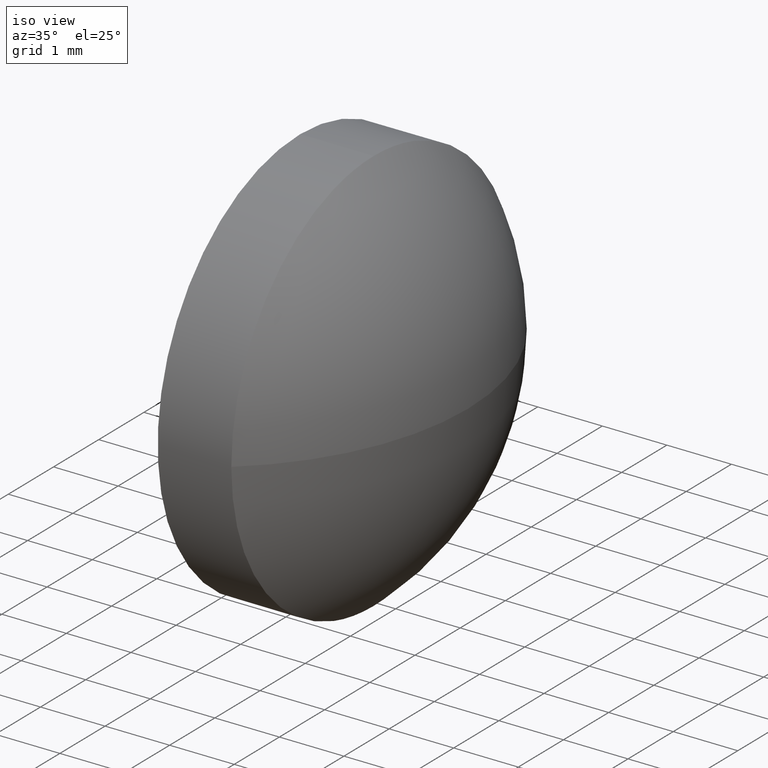
[diagram: clean part render]
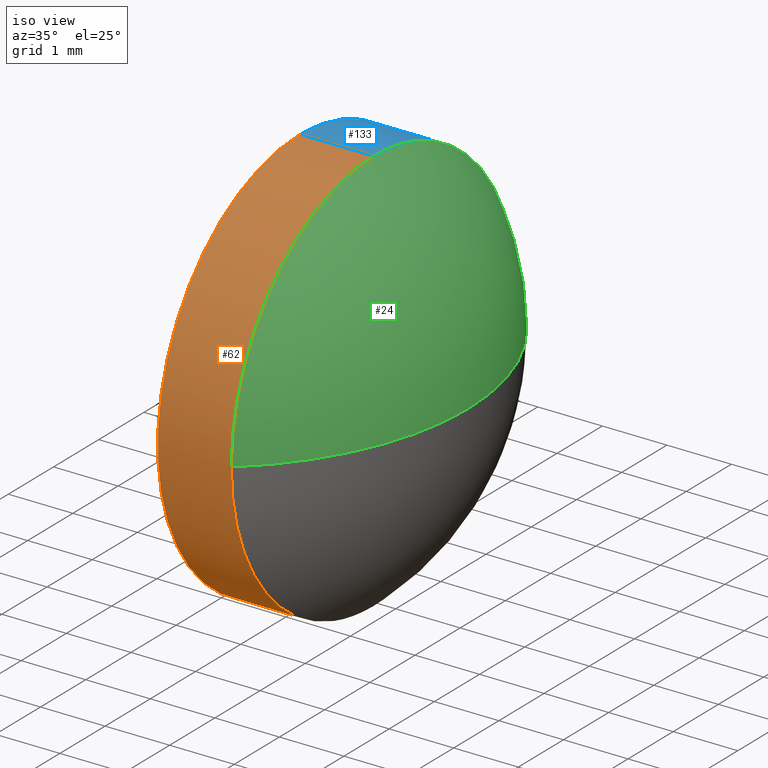
[diagram: same view with three faces highlighted in distinct colors, each labeled with its STEP entity id]
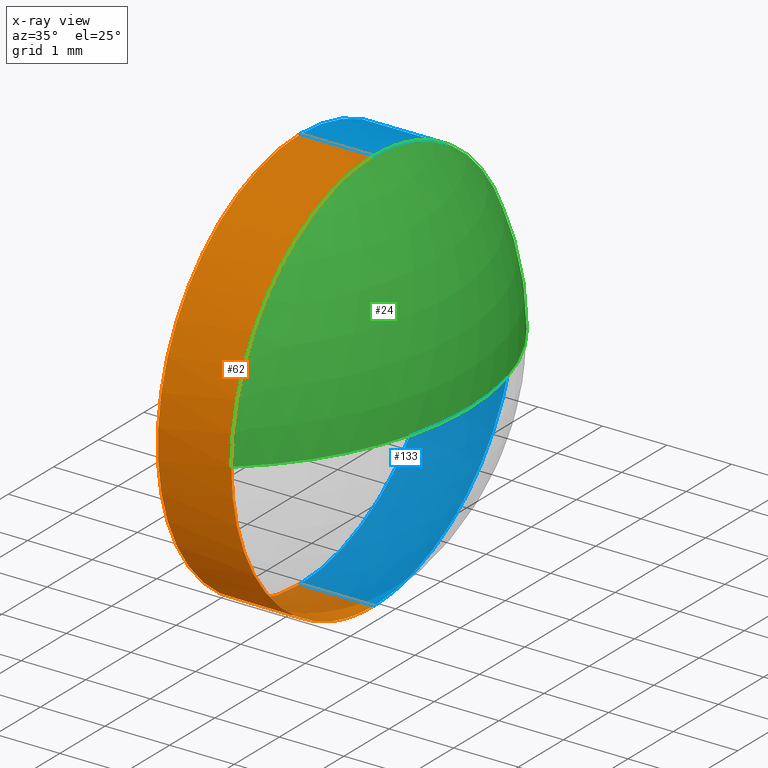
[diagram: x-ray of the same camera — body ghosted, the three highlighted faces saturated]
A machine part, iso view with three faces highlighted in distinct colors.
The next image is the same camera in x-ray (body ghosted, the three faces saturated) — at least one of them is partly hidden behind the body in this view.
Their STEP definitions:

[orange] entity #62 — the highlighted cylindrical surface (partial cylindrical patch) has radius 3.15 mm, axis along (-1, -0, -0).
#1 = DIRECTION ( 'NONE',  ( 0.0000000000000000000, 0.0000000000000000000, 1.000000000000000000 ) ) ;
#4 = CARTESIAN_POINT ( 'NONE',  ( 396.8941318018415800, -5.334423510750469600, -3.149999999999999900 ) ) ;
#7 = CARTESIAN_POINT ( 'NONE',  ( 394.9484213892996500, -5.334423510750469600, 0.0000000000000000000 ) ) ;
#9 = DIRECTION ( 'NONE',  ( 0.0000000000000000000, 0.0000000000000000000, 1.000000000000000000 ) ) ;
#13 = VERTEX_POINT ( 'NONE', #114 ) ;
#16 = VERTEX_POINT ( 'NONE', #143 ) ;
#18 = DIRECTION ( 'NONE',  ( 0.0000000000000000000, 0.0000000000000000000, 1.000000000000000000 ) ) ;
#21 = AXIS2_PLACEMENT_3D ( 'NONE', #131, #86, #1 ) ;
#25 = ORIENTED_EDGE ( 'NONE', *, *, #150, .F. ) ;
#26 = VERTEX_POINT ( 'NONE', #30 ) ;
#30 = CARTESIAN_POINT ( 'NONE',  ( 396.8941318018415800, -8.484423510750467300, 0.0000000000000000000 ) ) ;
#31 = VERTEX_POINT ( 'NONE', #4 ) ;
#37 = VECTOR ( 'NONE', #72, 1000.000000000000000 ) ;
#41 = EDGE_CURVE ( 'NONE', #13, #97, #81, .T. ) ;
#42 = FACE_OUTER_BOUND ( 'NONE', #56, .T. ) ;
#43 = CIRCLE ( 'NONE', #120, 3.149999999999999900 ) ;
#44 = CARTESIAN_POINT ( 'NONE',  ( 394.9484213892996500, -5.334423510750469600, -3.149999999999999900 ) ) ;
#49 = CARTESIAN_POINT ( 'NONE',  ( 396.8941318018415800, -5.334423510750469600, 0.0000000000000000000 ) ) ;
#56 = EDGE_LOOP ( 'NONE', ( #102, #167, #66, #177, #25 ) ) ;
#61 = EDGE_CURVE ( 'NONE', #31, #16, #186, .T. ) ;
#62 = ADVANCED_FACE ( 'NONE', ( #42 ), #180, .T. ) ;
#66 = ORIENTED_EDGE ( 'NONE', *, *, #170, .T. ) ;
#72 = DIRECTION ( 'NONE',  ( -1.000000000000000000, -0.0000000000000000000, -0.0000000000000000000 ) ) ;
#76 = CARTESIAN_POINT ( 'NONE',  ( 395.7541318018416000, -5.334423510750469600, 3.149999999999999900 ) ) ;
#77 = CIRCLE ( 'NONE', #21, 3.149999999999999900 ) ;
#81 = LINE ( 'NONE', #159, #37 ) ;
#86 = DIRECTION ( 'NONE',  ( -1.000000000000000000, -0.0000000000000000000, -0.0000000000000000000 ) ) ;
#90 = EDGE_CURVE ( 'NONE', #31, #26, #43, .T. ) ;
#97 = VERTEX_POINT ( 'NONE', #76 ) ;
#102 = ORIENTED_EDGE ( 'NONE', *, *, #61, .F. ) ;
#104 = DIRECTION ( 'NONE',  ( -1.000000000000000000, -0.0000000000000000000, -0.0000000000000000000 ) ) ;
#110 = AXIS2_PLACEMENT_3D ( 'NONE', #175, #118, #126 ) ;
#114 = CARTESIAN_POINT ( 'NONE',  ( 396.8941318018415800, -5.334423510750469600, 3.149999999999999900 ) ) ;
#118 = DIRECTION ( 'NONE',  ( -1.000000000000000000, -0.0000000000000000000, -0.0000000000000000000 ) ) ;
#120 = AXIS2_PLACEMENT_3D ( 'NONE', #49, #165, #9 ) ;
#126 = DIRECTION ( 'NONE',  ( 0.0000000000000000000, 0.0000000000000000000, 1.000000000000000000 ) ) ;
#131 = CARTESIAN_POINT ( 'NONE',  ( 396.8941318018415800, -5.334423510750469600, 0.0000000000000000000 ) ) ;
#139 = AXIS2_PLACEMENT_3D ( 'NONE', #7, #104, #18 ) ;
#143 = CARTESIAN_POINT ( 'NONE',  ( 395.7541318018416000, -5.334423510750469600, -3.149999999999999900 ) ) ;
#150 = EDGE_CURVE ( 'NONE', #16, #97, #183, .T. ) ;
#152 = VECTOR ( 'NONE', #174, 1000.000000000000000 ) ;
#159 = CARTESIAN_POINT ( 'NONE',  ( 394.9484213892996500, -5.334423510750469600, 3.149999999999999900 ) ) ;
#165 = DIRECTION ( 'NONE',  ( -1.000000000000000000, -0.0000000000000000000, -0.0000000000000000000 ) ) ;
#167 = ORIENTED_EDGE ( 'NONE', *, *, #90, .T. ) ;
#170 = EDGE_CURVE ( 'NONE', #26, #13, #77, .T. ) ;
#174 = DIRECTION ( 'NONE',  ( -1.000000000000000000, -0.0000000000000000000, -0.0000000000000000000 ) ) ;
#175 = CARTESIAN_POINT ( 'NONE',  ( 395.7541318018416000, -5.334423510750469600, 0.0000000000000000000 ) ) ;
#177 = ORIENTED_EDGE ( 'NONE', *, *, #41, .T. ) ;
#180 = CYLINDRICAL_SURFACE ( 'NONE', #139, 3.149999999999999900 ) ;
#183 = CIRCLE ( 'NONE', #110, 3.149999999999999900 ) ;
#186 = LINE ( 'NONE', #44, #152 ) ;

[blue] entity #133 — the highlighted cylindrical surface (partial cylindrical patch) has radius 3.15 mm, axis along (-1, -0, -0).
#4 = CARTESIAN_POINT ( 'NONE',  ( 396.8941318018415800, -5.334423510750469600, -3.149999999999999900 ) ) ;
#10 = ORIENTED_EDGE ( 'NONE', *, *, #130, .T. ) ;
#13 = VERTEX_POINT ( 'NONE', #114 ) ;
#16 = VERTEX_POINT ( 'NONE', #143 ) ;
#31 = VERTEX_POINT ( 'NONE', #4 ) ;
#33 = DIRECTION ( 'NONE',  ( 0.0000000000000000000, 0.0000000000000000000, 1.000000000000000000 ) ) ;
#34 = AXIS2_PLACEMENT_3D ( 'NONE', #84, #83, #176 ) ;
#36 = CARTESIAN_POINT ( 'NONE',  ( 394.9484213892996500, -5.334423510750469600, 0.0000000000000000000 ) ) ;
#37 = VECTOR ( 'NONE', #72, 1000.000000000000000 ) ;
#40 = VERTEX_POINT ( 'NONE', #73 ) ;
#41 = EDGE_CURVE ( 'NONE', #13, #97, #81, .T. ) ;
#44 = CARTESIAN_POINT ( 'NONE',  ( 394.9484213892996500, -5.334423510750469600, -3.149999999999999900 ) ) ;
#52 = CYLINDRICAL_SURFACE ( 'NONE', #185, 3.149999999999999900 ) ;
#53 = ORIENTED_EDGE ( 'NONE', *, *, #60, .T. ) ;
#55 = DIRECTION ( 'NONE',  ( -1.000000000000000000, -0.0000000000000000000, -0.0000000000000000000 ) ) ;
#60 = EDGE_CURVE ( 'NONE', #13, #40, #64, .T. ) ;
#61 = EDGE_CURVE ( 'NONE', #31, #16, #186, .T. ) ;
#64 = CIRCLE ( 'NONE', #68, 3.149999999999999900 ) ;
#68 = AXIS2_PLACEMENT_3D ( 'NONE', #75, #117, #33 ) ;
#72 = DIRECTION ( 'NONE',  ( -1.000000000000000000, -0.0000000000000000000, -0.0000000000000000000 ) ) ;
#73 = CARTESIAN_POINT ( 'NONE',  ( 396.8941318018415800, -2.184423510750467000, 3.857637417314160200E-016 ) ) ;
#75 = CARTESIAN_POINT ( 'NONE',  ( 396.8941318018415800, -5.334423510750469600, 0.0000000000000000000 ) ) ;
#76 = CARTESIAN_POINT ( 'NONE',  ( 395.7541318018416000, -5.334423510750469600, 3.149999999999999900 ) ) ;
#78 = FACE_OUTER_BOUND ( 'NONE', #137, .T. ) ;
#79 = ORIENTED_EDGE ( 'NONE', *, *, #158, .F. ) ;
#80 = CIRCLE ( 'NONE', #101, 3.149999999999999900 ) ;
#81 = LINE ( 'NONE', #159, #37 ) ;
#83 = DIRECTION ( 'NONE',  ( -1.000000000000000000, -0.0000000000000000000, -0.0000000000000000000 ) ) ;
#84 = CARTESIAN_POINT ( 'NONE',  ( 396.8941318018415800, -5.334423510750469600, 0.0000000000000000000 ) ) ;
#97 = VERTEX_POINT ( 'NONE', #76 ) ;
#101 = AXIS2_PLACEMENT_3D ( 'NONE', #129, #55, #179 ) ;
#108 = DIRECTION ( 'NONE',  ( 0.0000000000000000000, 0.0000000000000000000, 1.000000000000000000 ) ) ;
#114 = CARTESIAN_POINT ( 'NONE',  ( 396.8941318018415800, -5.334423510750469600, 3.149999999999999900 ) ) ;
#115 = CIRCLE ( 'NONE', #34, 3.149999999999999900 ) ;
#117 = DIRECTION ( 'NONE',  ( -1.000000000000000000, -0.0000000000000000000, -0.0000000000000000000 ) ) ;
#119 = DIRECTION ( 'NONE',  ( -1.000000000000000000, -0.0000000000000000000, -0.0000000000000000000 ) ) ;
#129 = CARTESIAN_POINT ( 'NONE',  ( 395.7541318018416000, -5.334423510750469600, 0.0000000000000000000 ) ) ;
#130 = EDGE_CURVE ( 'NONE', #40, #31, #115, .T. ) ;
#133 = ADVANCED_FACE ( 'NONE', ( #78 ), #52, .T. ) ;
#137 = EDGE_LOOP ( 'NONE', ( #10, #182, #79, #184, #53 ) ) ;
#143 = CARTESIAN_POINT ( 'NONE',  ( 395.7541318018416000, -5.334423510750469600, -3.149999999999999900 ) ) ;
#152 = VECTOR ( 'NONE', #174, 1000.000000000000000 ) ;
#158 = EDGE_CURVE ( 'NONE', #97, #16, #80, .T. ) ;
#159 = CARTESIAN_POINT ( 'NONE',  ( 394.9484213892996500, -5.334423510750469600, 3.149999999999999900 ) ) ;
#174 = DIRECTION ( 'NONE',  ( -1.000000000000000000, -0.0000000000000000000, -0.0000000000000000000 ) ) ;
#176 = DIRECTION ( 'NONE',  ( 0.0000000000000000000, 0.0000000000000000000, 1.000000000000000000 ) ) ;
#179 = DIRECTION ( 'NONE',  ( 0.0000000000000000000, 0.0000000000000000000, 1.000000000000000000 ) ) ;
#182 = ORIENTED_EDGE ( 'NONE', *, *, #61, .T. ) ;
#184 = ORIENTED_EDGE ( 'NONE', *, *, #41, .F. ) ;
#185 = AXIS2_PLACEMENT_3D ( 'NONE', #36, #119, #108 ) ;
#186 = LINE ( 'NONE', #44, #152 ) ;

[green] entity #24 — the highlighted spherical surface has radius 4.1281 mm.
#1 = DIRECTION ( 'NONE',  ( 0.0000000000000000000, 0.0000000000000000000, 1.000000000000000000 ) ) ;
#11 = CARTESIAN_POINT ( 'NONE',  ( 394.2260153634854300, -5.334423510750465200, 0.0000000000000000000 ) ) ;
#12 = SPHERICAL_SURFACE ( 'NONE', #99, 4.128116438356141100 ) ;
#13 = VERTEX_POINT ( 'NONE', #114 ) ;
#20 = CARTESIAN_POINT ( 'NONE',  ( 398.3541318018416200, -5.334423510750465200, 0.0000000000000000000 ) ) ;
#21 = AXIS2_PLACEMENT_3D ( 'NONE', #131, #86, #1 ) ;
#22 = DIRECTION ( 'NONE',  ( 0.0000000000000000000, -1.224646799147353200E-016, 1.000000000000000000 ) ) ;
#24 = ADVANCED_FACE ( 'NONE', ( #54 ), #12, .T. ) ;
#26 = VERTEX_POINT ( 'NONE', #30 ) ;
#27 = ORIENTED_EDGE ( 'NONE', *, *, #122, .T. ) ;
#30 = CARTESIAN_POINT ( 'NONE',  ( 396.8941318018415800, -8.484423510750467300, 0.0000000000000000000 ) ) ;
#33 = DIRECTION ( 'NONE',  ( 0.0000000000000000000, 0.0000000000000000000, 1.000000000000000000 ) ) ;
#40 = VERTEX_POINT ( 'NONE', #73 ) ;
#48 = DIRECTION ( 'NONE',  ( 0.0000000000000000000, 0.0000000000000000000, -1.000000000000000000 ) ) ;
#54 = FACE_OUTER_BOUND ( 'NONE', #135, .T. ) ;
#60 = EDGE_CURVE ( 'NONE', #13, #40, #64, .T. ) ;
#64 = CIRCLE ( 'NONE', #68, 3.149999999999999900 ) ;
#65 = CIRCLE ( 'NONE', #168, 4.128116438356140200 ) ;
#68 = AXIS2_PLACEMENT_3D ( 'NONE', #75, #117, #33 ) ;
#73 = CARTESIAN_POINT ( 'NONE',  ( 396.8941318018415800, -2.184423510750467000, 3.857637417314160200E-016 ) ) ;
#75 = CARTESIAN_POINT ( 'NONE',  ( 396.8941318018415800, -5.334423510750469600, 0.0000000000000000000 ) ) ;
#77 = CIRCLE ( 'NONE', #21, 3.149999999999999900 ) ;
#86 = DIRECTION ( 'NONE',  ( -1.000000000000000000, -0.0000000000000000000, -0.0000000000000000000 ) ) ;
#89 = VERTEX_POINT ( 'NONE', #20 ) ;
#92 = CARTESIAN_POINT ( 'NONE',  ( 394.2260153634854300, -5.334423510750465200, 0.0000000000000000000 ) ) ;
#94 = EDGE_CURVE ( 'NONE', #89, #26, #148, .T. ) ;
#99 = AXIS2_PLACEMENT_3D ( 'NONE', #157, #172, #106 ) ;
#106 = DIRECTION ( 'NONE',  ( 0.0000000000000000000, -1.000000000000000000, 0.0000000000000000000 ) ) ;
#109 = ORIENTED_EDGE ( 'NONE', *, *, #170, .F. ) ;
#113 = ORIENTED_EDGE ( 'NONE', *, *, #94, .F. ) ;
#114 = CARTESIAN_POINT ( 'NONE',  ( 396.8941318018415800, -5.334423510750469600, 3.149999999999999900 ) ) ;
#117 = DIRECTION ( 'NONE',  ( -1.000000000000000000, -0.0000000000000000000, -0.0000000000000000000 ) ) ;
#121 = DIRECTION ( 'NONE',  ( 0.0000000000000000000, -1.000000000000000000, -1.224646799147353200E-016 ) ) ;
#122 = EDGE_CURVE ( 'NONE', #89, #40, #65, .T. ) ;
#125 = AXIS2_PLACEMENT_3D ( 'NONE', #11, #48, #136 ) ;
#131 = CARTESIAN_POINT ( 'NONE',  ( 396.8941318018415800, -5.334423510750469600, 0.0000000000000000000 ) ) ;
#135 = EDGE_LOOP ( 'NONE', ( #113, #27, #164, #109 ) ) ;
#136 = DIRECTION ( 'NONE',  ( -1.000000000000000000, 0.0000000000000000000, 0.0000000000000000000 ) ) ;
#148 = CIRCLE ( 'NONE', #125, 4.128116438356144600 ) ;
#157 = CARTESIAN_POINT ( 'NONE',  ( 394.2260153634854300, -5.334423510750465200, 0.0000000000000000000 ) ) ;
#164 = ORIENTED_EDGE ( 'NONE', *, *, #60, .F. ) ;
#168 = AXIS2_PLACEMENT_3D ( 'NONE', #92, #22, #121 ) ;
#170 = EDGE_CURVE ( 'NONE', #26, #13, #77, .T. ) ;
#172 = DIRECTION ( 'NONE',  ( 0.0000000000000000000, 0.0000000000000000000, 1.000000000000000000 ) ) ;